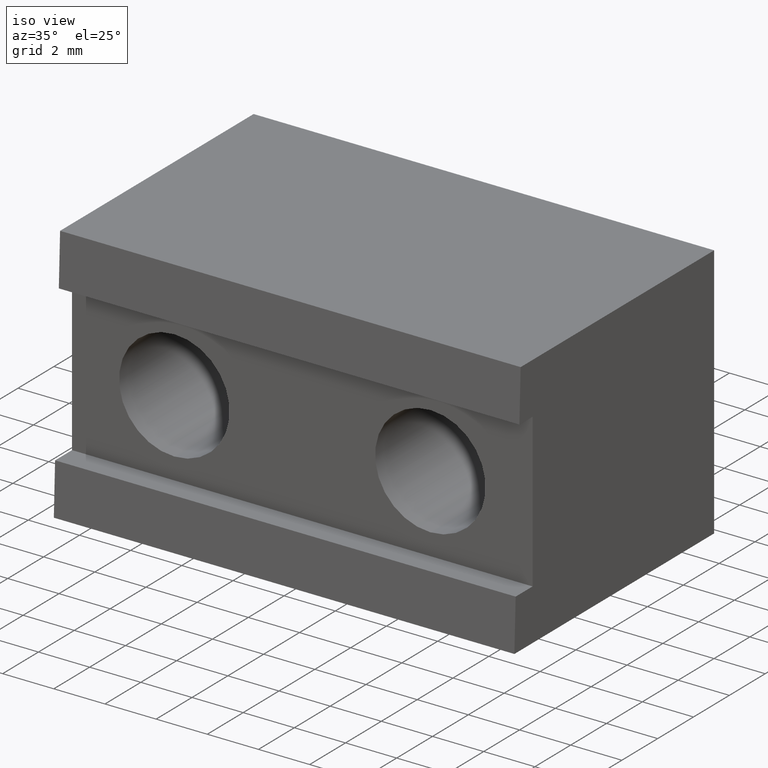
[diagram: clean part render]
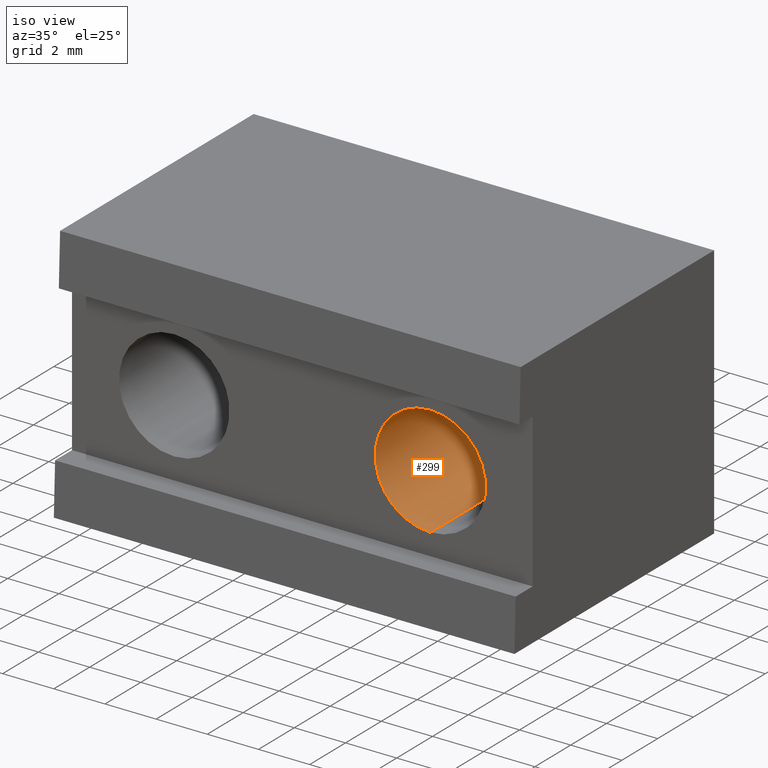
[diagram: same view with one face highlighted and labeled with its STEP entity id]
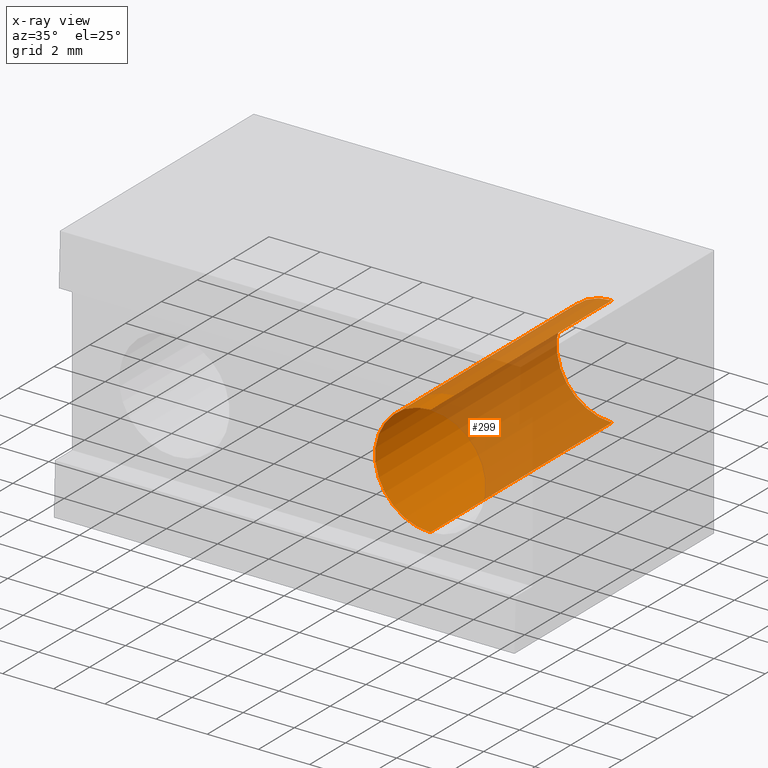
[diagram: x-ray of the same camera — body ghosted, the highlighted face saturated]
A machine part, iso view. The second image highlights one B-rep face of the part: STEP entity #299.
The next image is the same camera in x-ray: the body ghosted, the highlighted face saturated — about 60% of this face is hidden behind the body in this view.
In plain terms, the highlighted cylindrical surface (partial cylindrical patch) has radius 2.159 mm, axis along (-0, 1, -0).
Its self-contained STEP definition (entity closure, byte-faithful):
#17 = LINE ( 'NONE', #351, #26 ) ;
#26 = VECTOR ( 'NONE', #352, 39.37007874015748100 ) ;
#40 = ORIENTED_EDGE ( 'NONE', *, *, #156, .T. ) ;
#42 = ORIENTED_EDGE ( 'NONE', *, *, #341, .F. ) ;
#51 = EDGE_LOOP ( 'NONE', ( #97, #40, #112, #42 ) ) ;
#97 = ORIENTED_EDGE ( 'NONE', *, *, #343, .T. ) ;
#112 = ORIENTED_EDGE ( 'NONE', *, *, #346, .T. ) ;
#156 = EDGE_CURVE ( 'NONE', #330, #332, #17, .T. ) ;
#175 = AXIS2_PLACEMENT_3D ( 'NONE', #392, #386, #391 ) ;
#178 = AXIS2_PLACEMENT_3D ( 'NONE', #404, #403, #401 ) ;
#192 = AXIS2_PLACEMENT_3D ( 'NONE', #369, #370, #372 ) ;
#211 = LINE ( 'NONE', #409, #246 ) ;
#226 = CIRCLE ( 'NONE', #175, 0.08499999999999999200 ) ;
#230 = FACE_OUTER_BOUND ( 'NONE', #51, .T. ) ;
#246 = VECTOR ( 'NONE', #402, 39.37007874015748100 ) ;
#251 = CYLINDRICAL_SURFACE ( 'NONE', #192, 0.08499999999999999200 ) ;
#282 = CIRCLE ( 'NONE', #178, 0.08499999999999999200 ) ;
#299 = ADVANCED_FACE ( 'NONE', ( #230 ), #251, .F. ) ;
#309 = VERTEX_POINT ( 'NONE', #470 ) ;
#319 = VERTEX_POINT ( 'NONE', #427 ) ;
#330 = VERTEX_POINT ( 'NONE', #424 ) ;
#332 = VERTEX_POINT ( 'NONE', #421 ) ;
#341 = EDGE_CURVE ( 'NONE', #309, #319, #211, .T. ) ;
#343 = EDGE_CURVE ( 'NONE', #309, #330, #282, .T. ) ;
#346 = EDGE_CURVE ( 'NONE', #332, #319, #226, .T. ) ;
#351 = CARTESIAN_POINT ( 'NONE',  ( 0.1969999999999999800, -0.5609999999999999400, -0.2818503950000000300 ) ) ;
#352 = DIRECTION ( 'NONE',  ( -0.0000000000000000000, 1.000000000000000000, -0.0000000000000000000 ) ) ;
#369 = CARTESIAN_POINT ( 'NONE',  ( 0.1969999999999999800, -0.5609999999999999400, -0.1968503950000000100 ) ) ;
#370 = DIRECTION ( 'NONE',  ( -0.0000000000000000000, 1.000000000000000000, -0.0000000000000000000 ) ) ;
#372 = DIRECTION ( 'NONE',  ( 0.0000000000000000000, 0.0000000000000000000, 1.000000000000000000 ) ) ;
#386 = DIRECTION ( 'NONE',  ( 0.0000000000000000000, 1.000000000000000000, 0.0000000000000000000 ) ) ;
#391 = DIRECTION ( 'NONE',  ( 0.0000000000000000000, 0.0000000000000000000, 1.000000000000000000 ) ) ;
#392 = CARTESIAN_POINT ( 'NONE',  ( 0.1969999999999999800, 0.4390000000000000000, -0.1968503950000000100 ) ) ;
#401 = DIRECTION ( 'NONE',  ( 0.0000000000000000000, 0.0000000000000000000, 1.000000000000000000 ) ) ;
#402 = DIRECTION ( 'NONE',  ( -0.0000000000000000000, 1.000000000000000000, -0.0000000000000000000 ) ) ;
#403 = DIRECTION ( 'NONE',  ( -0.0000000000000000000, -1.000000000000000000, -0.0000000000000000000 ) ) ;
#404 = CARTESIAN_POINT ( 'NONE',  ( 0.1969999999999999800, 0.03999999999999998000, -0.1968503950000000100 ) ) ;
#409 = CARTESIAN_POINT ( 'NONE',  ( 0.1969999999999999800, -0.5609999999999999400, -0.1118503950000000200 ) ) ;
#421 = CARTESIAN_POINT ( 'NONE',  ( 0.1969999999999999800, 0.4390000000000000000, -0.2818503950000000300 ) ) ;
#424 = CARTESIAN_POINT ( 'NONE',  ( 0.1969999999999999800, 0.03999999999999998000, -0.2818503950000000300 ) ) ;
#427 = CARTESIAN_POINT ( 'NONE',  ( 0.1969999999999999800, 0.4390000000000000000, -0.1118503950000000200 ) ) ;
#470 = CARTESIAN_POINT ( 'NONE',  ( 0.1969999999999999800, 0.03999999999999998000, -0.1118503950000000200 ) ) ;